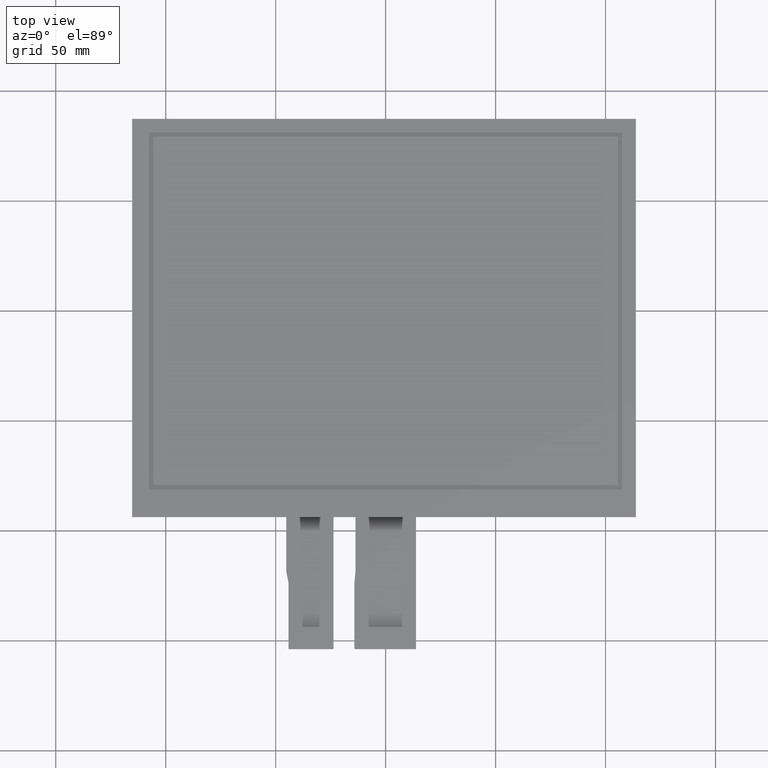
[diagram: clean part render]
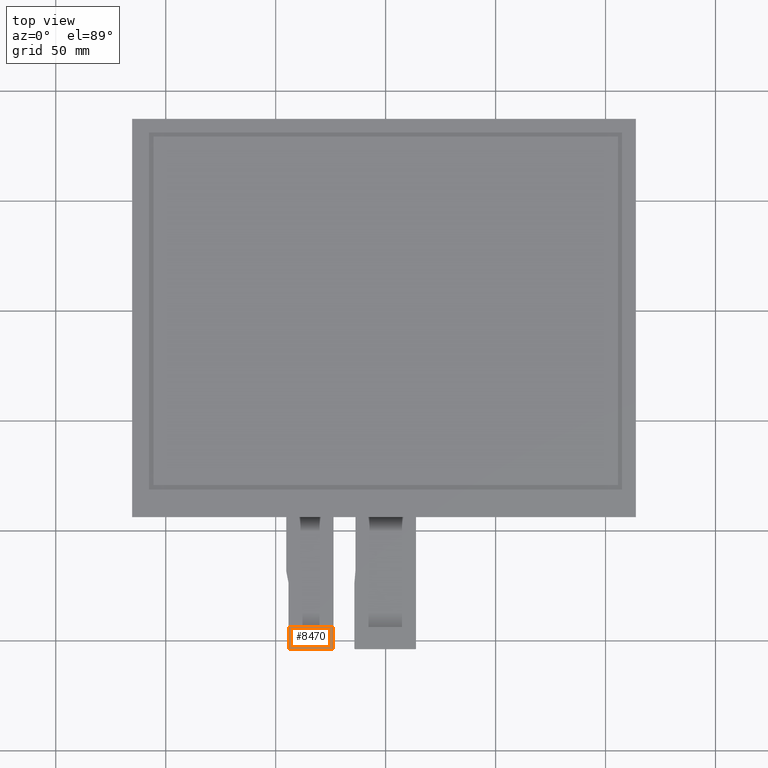
[diagram: same view with one face highlighted and labeled with its STEP entity id]
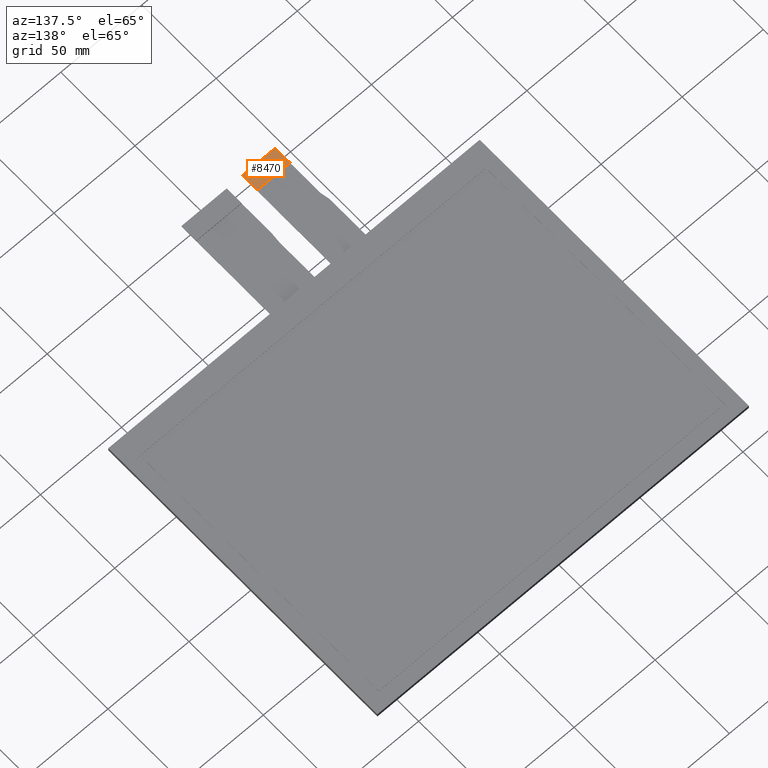
[diagram: same view with one face highlighted and labeled with its STEP entity id]
A machine part, top view. The second image highlights one B-rep face of the part: STEP entity #8470.
A second angle (auxiliary view) of the same face is appended — the face is thin or edge-on in the first view.
In plain terms, the highlighted planar face has unit normal (0, 0, 1).
Its self-contained STEP definition (entity closure, byte-faithful):
#135=PLANE('',#8914);
#554=FACE_OUTER_BOUND('',#976,.T.);
#976=EDGE_LOOP('',(#5973,#5974,#5975,#5976,#5977,#5978));
#1403=LINE('',#11455,#2643);
#1404=LINE('',#11459,#2644);
#1405=LINE('',#11461,#2645);
#1406=LINE('',#11462,#2646);
#2643=VECTOR('',#9353,10.);
#2644=VECTOR('',#9356,10.);
#2645=VECTOR('',#9357,10.);
#2646=VECTOR('',#9358,10.);
#3881=CIRCLE('',#8912,0.2);
#3883=CIRCLE('',#8915,0.2);
#3889=VERTEX_POINT('',#11445);
#3890=VERTEX_POINT('',#11446);
#3893=VERTEX_POINT('',#11454);
#3894=VERTEX_POINT('',#11456);
#3895=VERTEX_POINT('',#11458);
#3896=VERTEX_POINT('',#11460);
#4721=EDGE_CURVE('',#3889,#3890,#3881,.T.);
#4725=EDGE_CURVE('',#3889,#3893,#1403,.T.);
#4726=EDGE_CURVE('',#3894,#3893,#3883,.T.);
#4727=EDGE_CURVE('',#3894,#3895,#1404,.T.);
#4728=EDGE_CURVE('',#3895,#3896,#1405,.T.);
#4729=EDGE_CURVE('',#3896,#3890,#1406,.T.);
#5973=ORIENTED_EDGE('',*,*,#4721,.F.);
#5974=ORIENTED_EDGE('',*,*,#4725,.T.);
#5975=ORIENTED_EDGE('',*,*,#4726,.F.);
#5976=ORIENTED_EDGE('',*,*,#4727,.T.);
#5977=ORIENTED_EDGE('',*,*,#4728,.T.);
#5978=ORIENTED_EDGE('',*,*,#4729,.T.);
#8470=ADVANCED_FACE('',(#554),#135,.T.);
#8912=AXIS2_PLACEMENT_3D('',#11447,#9345,#9346);
#8914=AXIS2_PLACEMENT_3D('',#11453,#9351,#9352);
#8915=AXIS2_PLACEMENT_3D('',#11457,#9354,#9355);
#9345=DIRECTION('center_axis',(0.,0.,-1.));
#9346=DIRECTION('ref_axis',(-0.707106781186548,-0.707106781186548,0.));
#9351=DIRECTION('center_axis',(0.,0.,1.));
#9352=DIRECTION('ref_axis',(1.,0.,0.));
#9353=DIRECTION('',(1.,0.,0.));
#9354=DIRECTION('center_axis',(0.,0.,-1.));
#9355=DIRECTION('ref_axis',(0.707106781186563,-0.707106781186532,0.));
#9356=DIRECTION('',(0.,1.,0.));
#9357=DIRECTION('',(-1.,0.,0.));
#9358=DIRECTION('',(0.,-1.,0.));
#11445=CARTESIAN_POINT('',(-44.,-153.8,-0.8));
#11446=CARTESIAN_POINT('',(-44.2,-153.6,-0.8));
#11447=CARTESIAN_POINT('Origin',(-44.,-153.6,-0.8));
#11453=CARTESIAN_POINT('Origin',(-33.95,-148.8,-0.8));
#11454=CARTESIAN_POINT('',(-23.9,-153.8,-0.8));
#11455=CARTESIAN_POINT('',(-44.2,-153.8,-0.8));
#11456=CARTESIAN_POINT('',(-23.7,-153.6,-0.8));
#11457=CARTESIAN_POINT('Origin',(-23.9,-153.6,-0.8));
#11458=CARTESIAN_POINT('',(-23.7,-143.8,-0.8));
#11459=CARTESIAN_POINT('',(-23.7,-153.8,-0.8));
#11460=CARTESIAN_POINT('',(-44.2,-143.8,-0.8));
#11461=CARTESIAN_POINT('',(-23.7,-143.8,-0.8));
#11462=CARTESIAN_POINT('',(-44.2,-143.8,-0.8));